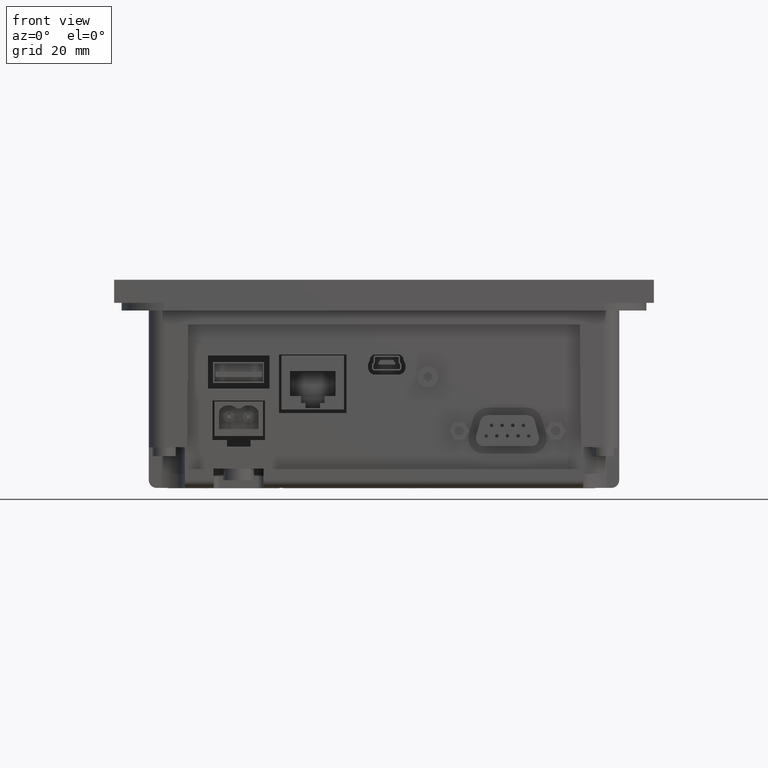
[diagram: clean part render]
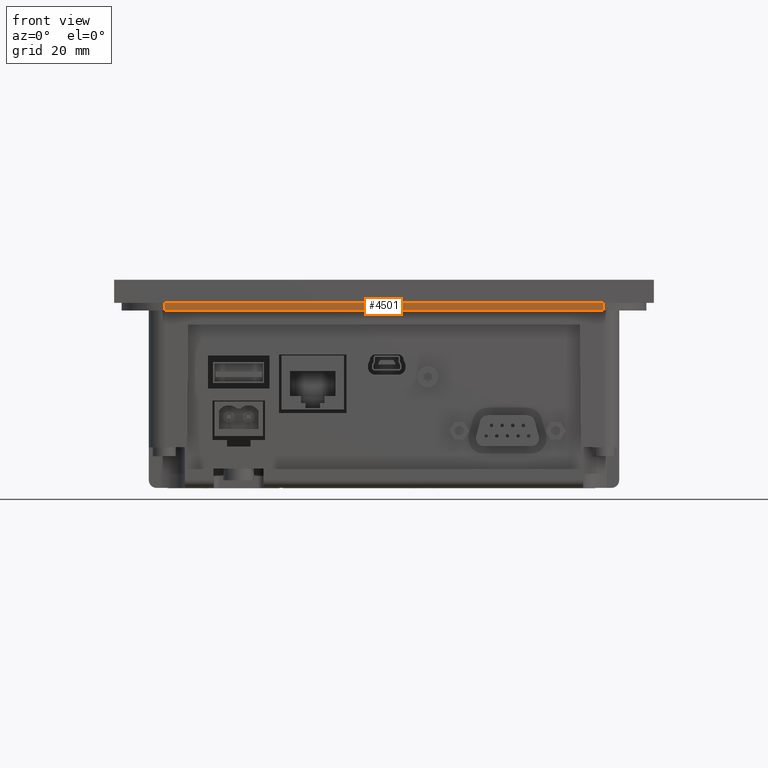
[diagram: same view with one face highlighted and labeled with its STEP entity id]
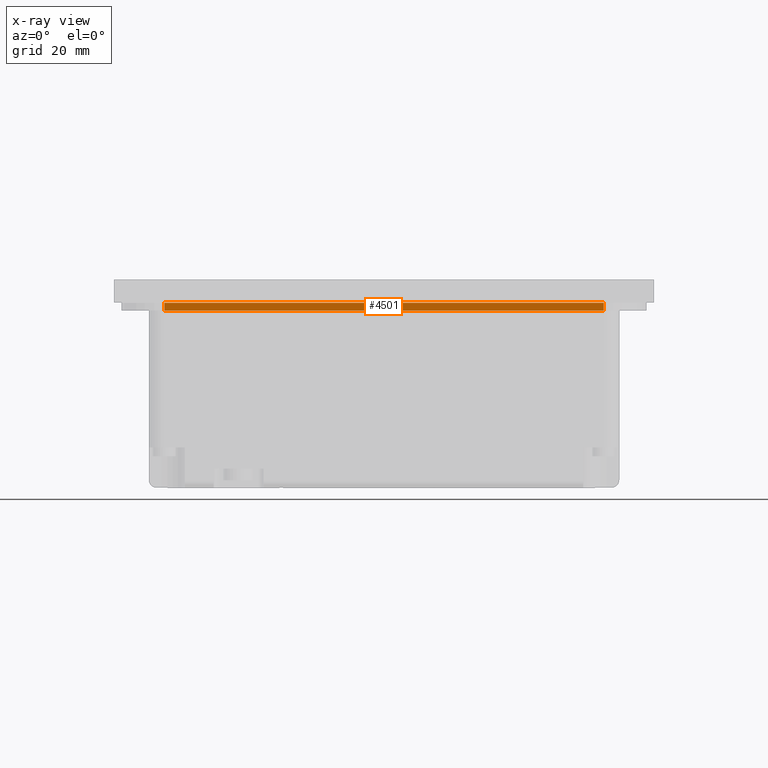
[diagram: x-ray of the same camera — body ghosted, the highlighted face saturated]
A machine part, front view. The second image highlights one B-rep face of the part: STEP entity #4501.
The next image is the same camera in x-ray: the body ghosted, the highlighted face saturated — about 0% of this face is hidden behind the body in this view.
In plain terms, the highlighted planar face has unit normal (0, -1, 0).
Its self-contained STEP definition (entity closure, byte-faithful):
#4501=ADVANCED_FACE('',(#8803),#6753,.T.);
#6753=PLANE('',#44607);
#8803=FACE_OUTER_BOUND('',#11056,.T.);
#11056=EDGE_LOOP('',(#15333,#15334,#15335,#15336));
#15333=ORIENTED_EDGE('',*,*,#29380,.F.);
#15334=ORIENTED_EDGE('',*,*,#29379,.F.);
#15335=ORIENTED_EDGE('',*,*,#29381,.T.);
#15336=ORIENTED_EDGE('',*,*,#29382,.T.);
#25216=VERTEX_POINT('',#59029);
#25218=VERTEX_POINT('',#59033);
#25219=VERTEX_POINT('',#59037);
#25220=VERTEX_POINT('',#59039);
#29379=EDGE_CURVE('',#25218,#25216,#34833,.T.);
#29380=EDGE_CURVE('',#25216,#25219,#34834,.T.);
#29381=EDGE_CURVE('',#25218,#25220,#34835,.T.);
#29382=EDGE_CURVE('',#25220,#25219,#34836,.T.);
#34833=LINE('',#59034,#39741);
#34834=LINE('',#59036,#39742);
#34835=LINE('',#59038,#39743);
#34836=LINE('',#59040,#39744);
#39741=VECTOR('',#48527,1.);
#39742=VECTOR('',#48530,1.);
#39743=VECTOR('',#48531,1.);
#39744=VECTOR('',#48532,1.);
#44607=AXIS2_PLACEMENT_3D('',#59041,#48533,#48534);
#48527=DIRECTION('',(0.,0.,1.));
#48530=DIRECTION('',(-1.,0.,0.));
#48531=DIRECTION('',(-1.,0.,0.));
#48532=DIRECTION('',(0.,0.,1.));
#48533=DIRECTION('',(0.,1.,0.));
#48534=DIRECTION('',(0.,0.,1.));
#59029=CARTESIAN_POINT('',(56.9982858057376,56.0436248567199,-6.));
#59033=CARTESIAN_POINT('',(56.9982858057376,56.0436248567199,-8.));
#59034=CARTESIAN_POINT('',(56.9982858057376,56.0436248567199,-8.));
#59036=CARTESIAN_POINT('',(56.9982858057376,56.0436248567199,-6.));
#59037=CARTESIAN_POINT('',(-57.0017141942624,56.0436248567199,-6.));
#59038=CARTESIAN_POINT('',(56.9982858057376,56.0436248567199,-8.));
#59039=CARTESIAN_POINT('',(-57.0017141942624,56.0436248567199,-8.));
#59040=CARTESIAN_POINT('',(-57.0017141942624,56.0436248567199,-8.));
#59041=CARTESIAN_POINT('',(56.9982858057376,56.0436248567199,-8.));